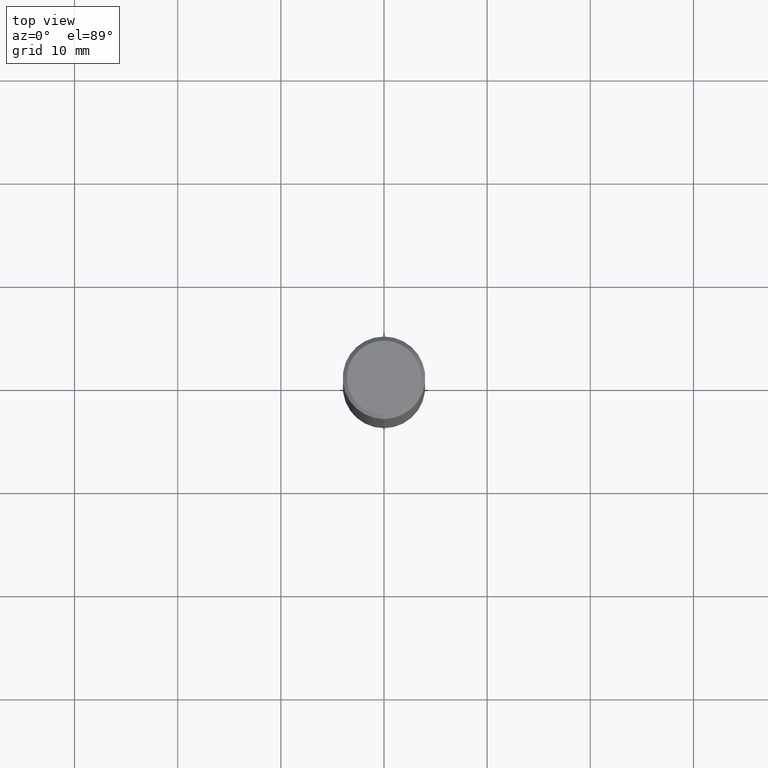
[diagram: clean part render]
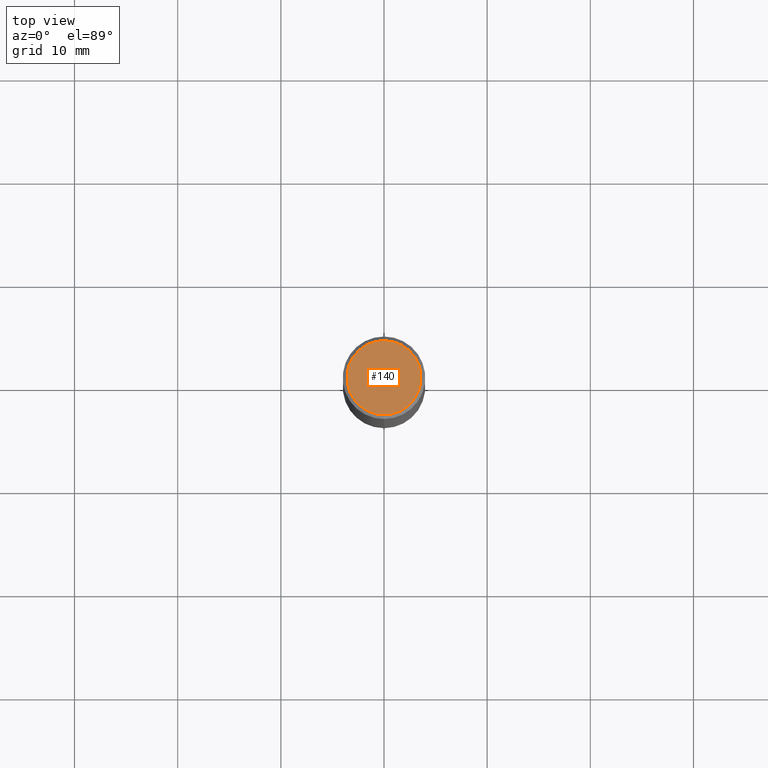
[diagram: same view with one face highlighted and labeled with its STEP entity id]
A machine part, top view. The second image highlights one B-rep face of the part: STEP entity #140.
In plain terms, the highlighted planar face has unit normal (-0, 0, 1).
Its self-contained STEP definition (entity closure, byte-faithful):
#108=EDGE_CURVE('',#112,#174,#233,.T.);
#112=VERTEX_POINT('',#237);
#140=ADVANCED_FACE('',(#268),#269,.T.);
#164=EDGE_CURVE('',#174,#112,#298,.T.);
#174=VERTEX_POINT('',#308);
#233=CIRCLE('',#370,3.6);
#237=CARTESIAN_POINT('',(4.40858287376056E-016,-3.6,0.0));
#268=FACE_OUTER_BOUND('',#410,.T.);
#269=PLANE('',#411);
#298=CIRCLE('',#448,3.6);
#308=CARTESIAN_POINT('',(0.0,3.6,0.0));
#370=AXIS2_PLACEMENT_3D('',#505,#506,#507);
#410=EDGE_LOOP('',(#541,#542));
#411=AXIS2_PLACEMENT_3D('',#543,#544,#545);
#448=AXIS2_PLACEMENT_3D('',#595,#596,#597);
#505=CARTESIAN_POINT('',(0.0,0.0,0.0));
#506=DIRECTION('',(0.0,0.0,-1.0));
#507=DIRECTION('',(0.0,1.0,0.0));
#541=ORIENTED_EDGE('',*,*,#164,.F.);
#542=ORIENTED_EDGE('',*,*,#108,.F.);
#543=CARTESIAN_POINT('',(0.0,1.8,0.0));
#544=DIRECTION('',(-0.0,0.0,1.0));
#545=DIRECTION('',(0.0,-1.0,0.0));
#595=CARTESIAN_POINT('',(0.0,0.0,0.0));
#596=DIRECTION('',(0.0,0.0,-1.0));
#597=DIRECTION('',(0.0,1.0,0.0));